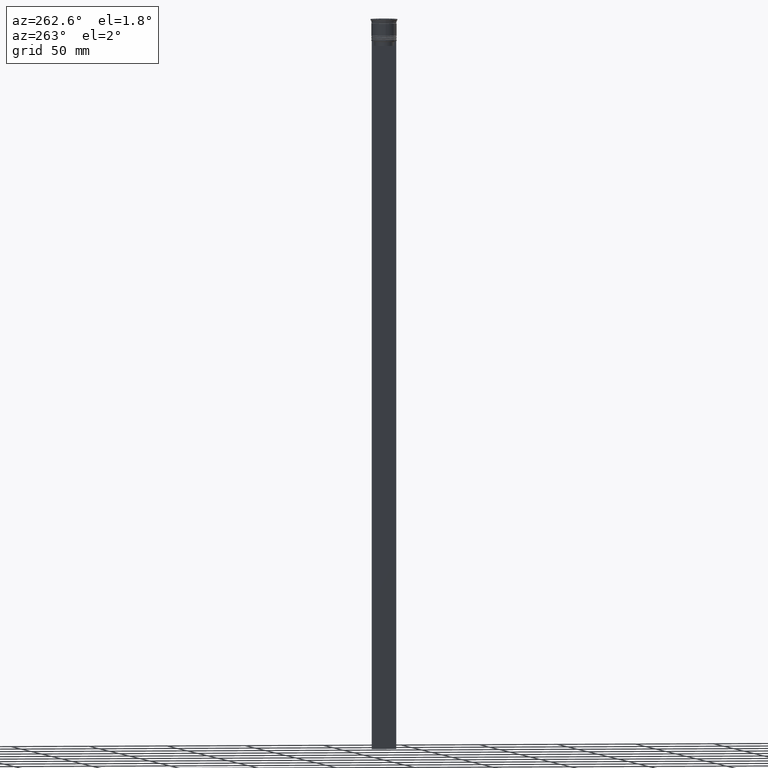
[diagram: clean part render]
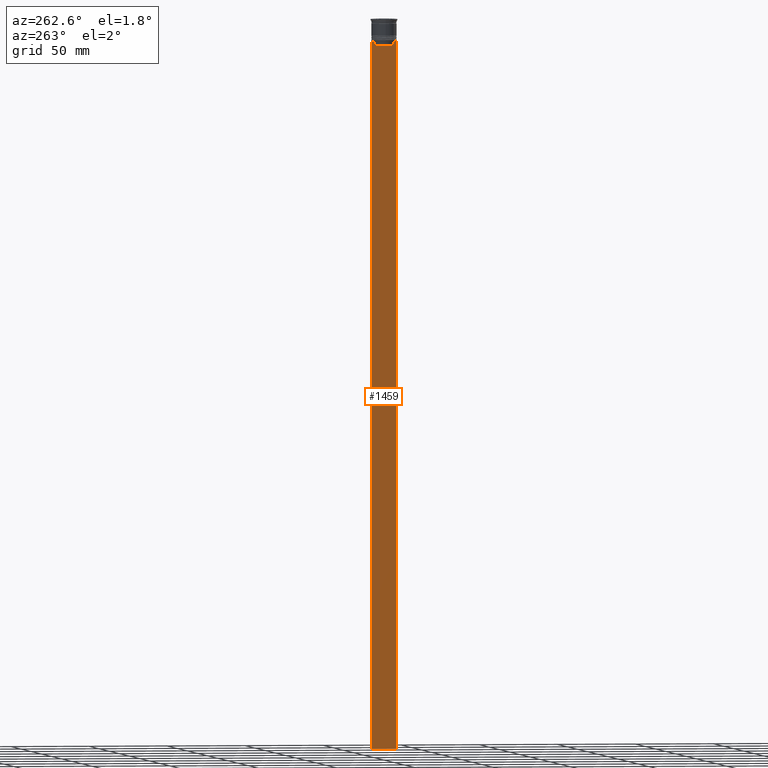
[diagram: same view with one face highlighted and labeled with its STEP entity id]
A machine part, auxiliary view. The second image highlights one B-rep face of the part: STEP entity #1459.
In plain terms, the highlighted planar face has unit normal (-1, 0, 0).
Its self-contained STEP definition (entity closure, byte-faithful):
#37 = VERTEX_POINT ( 'NONE', #407 ) ;
#51 = EDGE_CURVE ( 'NONE', #37, #2287, #470, .T. ) ;
#116 = CARTESIAN_POINT ( 'NONE',  ( -0.4999999999999998890, 7.750000000000002665, -464.0000000000000000 ) ) ;
#164 = CARTESIAN_POINT ( 'NONE',  ( -0.4999999999999998890, -7.749999999999999112, 1.532224567009066840 ) ) ;
#207 = CARTESIAN_POINT ( 'NONE',  ( -0.4999999999999998890, 6.881860213634098500, -14.00000000000000178 ) ) ;
#220 = VECTOR ( 'NONE', #1215, 1000.000000000000000 ) ;
#236 = CARTESIAN_POINT ( 'NONE',  ( -0.4999999999999998890, 7.750000000000002665, -14.00000000000000178 ) ) ;
#364 = EDGE_CURVE ( 'NONE', #612, #1916, #915, .T. ) ;
#371 = DIRECTION ( 'NONE',  ( 0.000000000000000000, 0.000000000000000000, -1.000000000000000000 ) ) ;
#407 = CARTESIAN_POINT ( 'NONE',  ( -0.4999999999999998890, -6.881860213634098500, -14.00000000000000178 ) ) ;
#410 = LINE ( 'NONE', #2238, #2010 ) ;
#420 = CARTESIAN_POINT ( 'NONE',  ( -0.4999999999999998890, 6.399999999999999467, -17.00000000000000000 ) ) ;
#454 = VERTEX_POINT ( 'NONE', #236 ) ;
#470 = LINE ( 'NONE', #1021, #1537 ) ;
#504 = DIRECTION ( 'NONE',  ( 0.000000000000000000, 0.000000000000000000, 1.000000000000000000 ) ) ;
#560 = EDGE_CURVE ( 'NONE', #1919, #37, #1066, .T. ) ;
#561 = LINE ( 'NONE', #164, #2209 ) ;
#612 = VERTEX_POINT ( 'NONE', #207 ) ;
#645 = LINE ( 'NONE', #1027, #1978 ) ;
#656 = VECTOR ( 'NONE', #2191, 1000.000000000000000 ) ;
#687 = FACE_OUTER_BOUND ( 'NONE', #2257, .T. ) ;
#694 = EDGE_CURVE ( 'NONE', #1916, #2101, #410, .T. ) ;
#786 = ORIENTED_EDGE ( 'NONE', *, *, #560, .F. ) ;
#852 = ORIENTED_EDGE ( 'NONE', *, *, #364, .F. ) ;
#857 = EDGE_CURVE ( 'NONE', #454, #612, #1210, .T. ) ;
#915 = B_SPLINE_CURVE_WITH_KNOTS ( 'NONE', 3,
 ( #1719, #2283, #1711, #969 ),
 .UNSPECIFIED., .F., .F.,
 ( 4, 4 ),
 ( 0.01172465562756038263, 0.01243276816391822651 ),
 .UNSPECIFIED. ) ;
#969 = CARTESIAN_POINT ( 'NONE',  ( -0.4999999999999998890, 6.380438856379708312, -14.50000000000000000 ) ) ;
#975 = CARTESIAN_POINT ( 'NONE',  ( -0.4999999999999998890, -6.380438856379708312, -17.00000000000000000 ) ) ;
#1019 = EDGE_CURVE ( 'NONE', #2101, #2307, #1143, .T. ) ;
#1021 = CARTESIAN_POINT ( 'NONE',  ( -0.4999999999999998890, -7.749999999999999112, -14.00000000000000178 ) ) ;
#1027 = CARTESIAN_POINT ( 'NONE',  ( -0.4999999999999998890, -6.380438856379708312, 0.000000000000000000 ) ) ;
#1055 = DIRECTION ( 'NONE',  ( -1.000000000000000000, 0.000000000000000000, 0.000000000000000000 ) ) ;
#1066 = B_SPLINE_CURVE_WITH_KNOTS ( 'NONE', 3,
 ( #1588, #2205, #1113, #1602 ),
 .UNSPECIFIED., .F., .F.,
 ( 4, 4 ),
 ( 0.02996184199614749730, 0.03067452609193703841 ),
 .UNSPECIFIED. ) ;
#1101 = LINE ( 'NONE', #1449, #656 ) ;
#1113 = CARTESIAN_POINT ( 'NONE',  ( -0.4999999999999998890, -6.714736947305992132, -14.16668390685738999 ) ) ;
#1143 = LINE ( 'NONE', #420, #2282 ) ;
#1159 = DIRECTION ( 'NONE',  ( 0.000000000000000000, 0.000000000000000000, -1.000000000000000000 ) ) ;
#1183 = CARTESIAN_POINT ( 'NONE',  ( -0.4999999999999998890, -7.749999999999999112, -14.00000000000000178 ) ) ;
#1189 = EDGE_CURVE ( 'NONE', #1713, #1536, #1363, .T. ) ;
#1210 = LINE ( 'NONE', #1580, #1391 ) ;
#1215 = DIRECTION ( 'NONE',  ( 0.000000000000000000, 1.000000000000000000, 0.000000000000000000 ) ) ;
#1274 = ORIENTED_EDGE ( 'NONE', *, *, #2038, .T. ) ;
#1297 = CARTESIAN_POINT ( 'NONE',  ( -0.4999999999999998890, -7.749999999999999112, -464.0000000000000000 ) ) ;
#1336 = DIRECTION ( 'NONE',  ( 0.000000000000000000, -1.000000000000000000, 0.000000000000000000 ) ) ;
#1363 = LINE ( 'NONE', #1756, #220 ) ;
#1391 = VECTOR ( 'NONE', #1772, 1000.000000000000000 ) ;
#1414 = CARTESIAN_POINT ( 'NONE',  ( -0.4999999999999998890, -6.380438856379708312, -14.50000000000000000 ) ) ;
#1430 = PLANE ( 'NONE',  #1859 ) ;
#1449 = CARTESIAN_POINT ( 'NONE',  ( -0.4999999999999998890, 7.750000000000002665, 1.532224567009066840 ) ) ;
#1459 = ADVANCED_FACE ( 'NONE', ( #687 ), #1430, .T. ) ;
#1536 = VERTEX_POINT ( 'NONE', #116 ) ;
#1537 = VECTOR ( 'NONE', #2176, 1000.000000000000000 ) ;
#1580 = CARTESIAN_POINT ( 'NONE',  ( -0.4999999999999998890, -7.749999999999999112, -14.00000000000000178 ) ) ;
#1588 = CARTESIAN_POINT ( 'NONE',  ( -0.4999999999999998890, -6.380438856379708312, -14.50000000000000000 ) ) ;
#1602 = CARTESIAN_POINT ( 'NONE',  ( -0.4999999999999998890, -6.881860213634098500, -14.00000000000000178 ) ) ;
#1636 = EDGE_CURVE ( 'NONE', #2287, #1713, #561, .T. ) ;
#1703 = ORIENTED_EDGE ( 'NONE', *, *, #51, .F. ) ;
#1711 = CARTESIAN_POINT ( 'NONE',  ( -0.4999999999999998890, 6.547597841304911626, -14.33335192459222718 ) ) ;
#1713 = VERTEX_POINT ( 'NONE', #1297 ) ;
#1719 = CARTESIAN_POINT ( 'NONE',  ( -0.4999999999999998890, 6.881860213634098500, -14.00000000000000178 ) ) ;
#1756 = CARTESIAN_POINT ( 'NONE',  ( -0.4999999999999998890, -7.749999999999999112, -464.0000000000000000 ) ) ;
#1763 = DIRECTION ( 'NONE',  ( -0.000000000000000000, -0.000000000000000000, 1.000000000000000000 ) ) ;
#1772 = DIRECTION ( 'NONE',  ( 0.000000000000000000, -1.000000000000000000, 0.000000000000000000 ) ) ;
#1813 = ORIENTED_EDGE ( 'NONE', *, *, #694, .F. ) ;
#1858 = ORIENTED_EDGE ( 'NONE', *, *, #1189, .F. ) ;
#1859 = AXIS2_PLACEMENT_3D ( 'NONE', #2351, #1055, #504 ) ;
#1889 = ORIENTED_EDGE ( 'NONE', *, *, #2023, .F. ) ;
#1916 = VERTEX_POINT ( 'NONE', #2327 ) ;
#1919 = VERTEX_POINT ( 'NONE', #1414 ) ;
#1978 = VECTOR ( 'NONE', #1763, 1000.000000000000000 ) ;
#1990 = ORIENTED_EDGE ( 'NONE', *, *, #857, .F. ) ;
#2010 = VECTOR ( 'NONE', #1159, 1000.000000000000000 ) ;
#2023 = EDGE_CURVE ( 'NONE', #2307, #1919, #645, .T. ) ;
#2038 = EDGE_CURVE ( 'NONE', #454, #1536, #1101, .T. ) ;
#2101 = VERTEX_POINT ( 'NONE', #2218 ) ;
#2176 = DIRECTION ( 'NONE',  ( 0.000000000000000000, -1.000000000000000000, 0.000000000000000000 ) ) ;
#2191 = DIRECTION ( 'NONE',  ( 0.000000000000000000, 0.000000000000000000, -1.000000000000000000 ) ) ;
#2205 = CARTESIAN_POINT ( 'NONE',  ( -0.4999999999999998890, -6.547597841511246131, -14.33335192438652328 ) ) ;
#2209 = VECTOR ( 'NONE', #371, 1000.000000000000000 ) ;
#2218 = CARTESIAN_POINT ( 'NONE',  ( -0.4999999999999998890, 6.380438856379708312, -17.00000000000000000 ) ) ;
#2226 = ORIENTED_EDGE ( 'NONE', *, *, #1636, .F. ) ;
#2238 = CARTESIAN_POINT ( 'NONE',  ( -0.4999999999999998890, 6.380438856379708312, 0.000000000000000000 ) ) ;
#2257 = EDGE_LOOP ( 'NONE', ( #852, #1990, #1274, #1858, #2226, #1703, #786, #1889, #2332, #1813 ) ) ;
#2282 = VECTOR ( 'NONE', #1336, 1000.000000000000000 ) ;
#2283 = CARTESIAN_POINT ( 'NONE',  ( -0.4999999999999998890, 6.714736947114692711, -14.16668390704818847 ) ) ;
#2287 = VERTEX_POINT ( 'NONE', #1183 ) ;
#2307 = VERTEX_POINT ( 'NONE', #975 ) ;
#2327 = CARTESIAN_POINT ( 'NONE',  ( -0.4999999999999998890, 6.380438856379708312, -14.50000000000000000 ) ) ;
#2332 = ORIENTED_EDGE ( 'NONE', *, *, #1019, .F. ) ;
#2351 = CARTESIAN_POINT ( 'NONE',  ( -0.4999999999999998890, -7.749999999999999112, 1.532224567009066840 ) ) ;